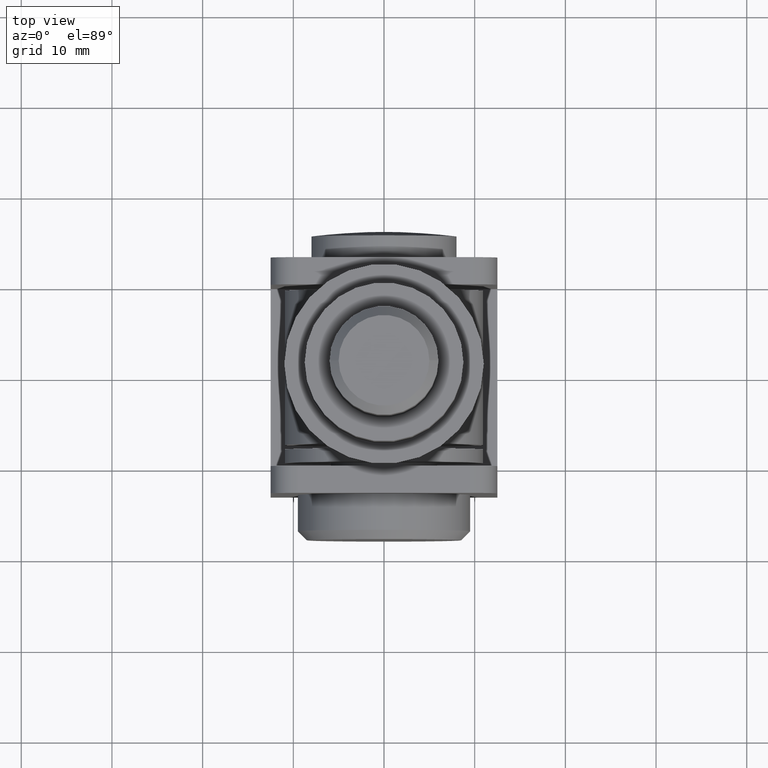
[diagram: clean part render]
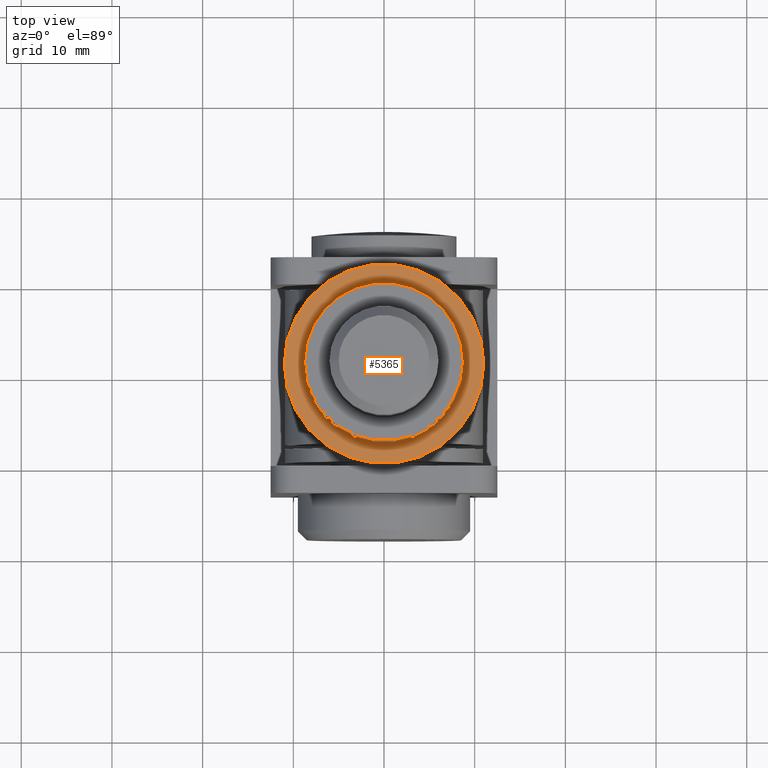
[diagram: same view with one face highlighted and labeled with its STEP entity id]
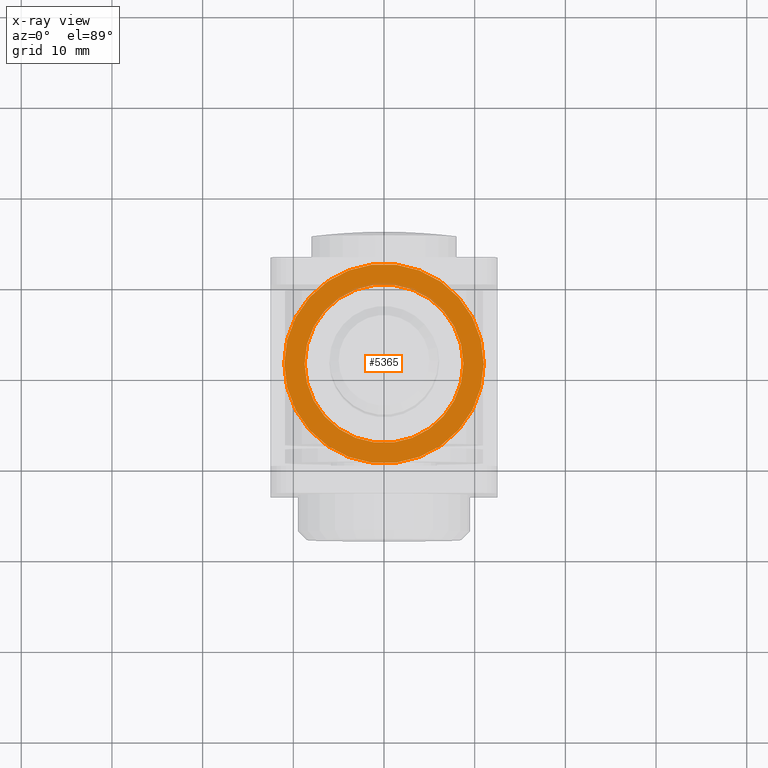
[diagram: x-ray of the same camera — body ghosted, the highlighted face saturated]
A machine part, top view. The second image highlights one B-rep face of the part: STEP entity #5365.
The next image is the same camera in x-ray: the body ghosted, the highlighted face saturated — about 2% of this face is hidden behind the body in this view.
In plain terms, the highlighted planar face has unit normal (0, 0, -1).
Its self-contained STEP definition (entity closure, byte-faithful):
#29 = ORIENTED_EDGE ( 'NONE', *, *, #2119, .F. ) ;
#425 = DIRECTION ( 'NONE',  ( 1.000000000000000000, 0.000000000000000000, 0.000000000000000000 ) ) ;
#614 = EDGE_CURVE ( 'NONE', #11655, #7940, #7839, .T. ) ;
#668 = CARTESIAN_POINT ( 'NONE',  ( 0.000000000000000000, 0.000000000000000000, -4.000000000000000000 ) ) ;
#1311 = VERTEX_POINT ( 'NONE', #14663 ) ;
#1637 = ORIENTED_EDGE ( 'NONE', *, *, #614, .F. ) ;
#1638 = DIRECTION ( 'NONE',  ( -0.000000000000000000, -0.000000000000000000, 1.000000000000000000 ) ) ;
#2119 = EDGE_CURVE ( 'NONE', #7940, #11655, #2331, .T. ) ;
#2331 = CIRCLE ( 'NONE', #11427, 8.750000000000000000 ) ;
#3503 = DIRECTION ( 'NONE',  ( 0.000000000000000000, 0.000000000000000000, -1.000000000000000000 ) ) ;
#4094 = CARTESIAN_POINT ( 'NONE',  ( 0.000000000000000000, 0.000000000000000000, -4.000000000000000000 ) ) ;
#4194 = DIRECTION ( 'NONE',  ( 1.000000000000000000, 0.000000000000000000, 0.000000000000000000 ) ) ;
#4885 = CARTESIAN_POINT ( 'NONE',  ( -8.750000000000000000, 1.071565949253934124E-15, -4.000000000000000000 ) ) ;
#5365 = ADVANCED_FACE ( 'NONE', ( #14682, #10445 ), #9264, .F. ) ;
#5397 = AXIS2_PLACEMENT_3D ( 'NONE', #11738, #3503, #15054 ) ;
#5436 = CIRCLE ( 'NONE', #10380, 11.00000000000000000 ) ;
#5658 = DIRECTION ( 'NONE',  ( -0.000000000000000000, -0.000000000000000000, 1.000000000000000000 ) ) ;
#6448 = DIRECTION ( 'NONE',  ( -0.000000000000000000, -0.000000000000000000, 1.000000000000000000 ) ) ;
#6748 = DIRECTION ( 'NONE',  ( 1.000000000000000000, 0.000000000000000000, 0.000000000000000000 ) ) ;
#7356 = ORIENTED_EDGE ( 'NONE', *, *, #10964, .T. ) ;
#7584 = AXIS2_PLACEMENT_3D ( 'NONE', #15058, #5658, #13847 ) ;
#7839 = CIRCLE ( 'NONE', #7584, 8.750000000000000000 ) ;
#7940 = VERTEX_POINT ( 'NONE', #4885 ) ;
#9264 = PLANE ( 'NONE',  #5397 ) ;
#9647 = CARTESIAN_POINT ( 'NONE',  ( 0.000000000000000000, 0.000000000000000000, -4.000000000000000000 ) ) ;
#10213 = EDGE_LOOP ( 'NONE', ( #7356, #13751 ) ) ;
#10380 = AXIS2_PLACEMENT_3D ( 'NONE', #4094, #6448, #6748 ) ;
#10445 = FACE_OUTER_BOUND ( 'NONE', #10213, .T. ) ;
#10806 = CARTESIAN_POINT ( 'NONE',  ( 11.00000000000000000, 0.000000000000000000, -4.000000000000000000 ) ) ;
#10964 = EDGE_CURVE ( 'NONE', #11559, #1311, #11473, .T. ) ;
#11276 = EDGE_CURVE ( 'NONE', #1311, #11559, #5436, .T. ) ;
#11427 = AXIS2_PLACEMENT_3D ( 'NONE', #668, #1638, #4194 ) ;
#11473 = CIRCLE ( 'NONE', #11977, 11.00000000000000000 ) ;
#11559 = VERTEX_POINT ( 'NONE', #10806 ) ;
#11655 = VERTEX_POINT ( 'NONE', #13347 ) ;
#11738 = CARTESIAN_POINT ( 'NONE',  ( 0.000000000000000000, 8.750000000000000000, -4.000000000000000000 ) ) ;
#11977 = AXIS2_PLACEMENT_3D ( 'NONE', #9647, #12126, #425 ) ;
#12126 = DIRECTION ( 'NONE',  ( -0.000000000000000000, -0.000000000000000000, 1.000000000000000000 ) ) ;
#13064 = EDGE_LOOP ( 'NONE', ( #1637, #29 ) ) ;
#13347 = CARTESIAN_POINT ( 'NONE',  ( 8.750000000000000000, 0.000000000000000000, -4.000000000000000000 ) ) ;
#13751 = ORIENTED_EDGE ( 'NONE', *, *, #11276, .T. ) ;
#13847 = DIRECTION ( 'NONE',  ( 1.000000000000000000, 0.000000000000000000, 0.000000000000000000 ) ) ;
#14663 = CARTESIAN_POINT ( 'NONE',  ( -11.00000000000000000, 1.347111479062088405E-15, -4.000000000000000000 ) ) ;
#14682 = FACE_BOUND ( 'NONE', #13064, .T. ) ;
#15054 = DIRECTION ( 'NONE',  ( -1.000000000000000000, 0.000000000000000000, -0.000000000000000000 ) ) ;
#15058 = CARTESIAN_POINT ( 'NONE',  ( 0.000000000000000000, 0.000000000000000000, -4.000000000000000000 ) ) ;